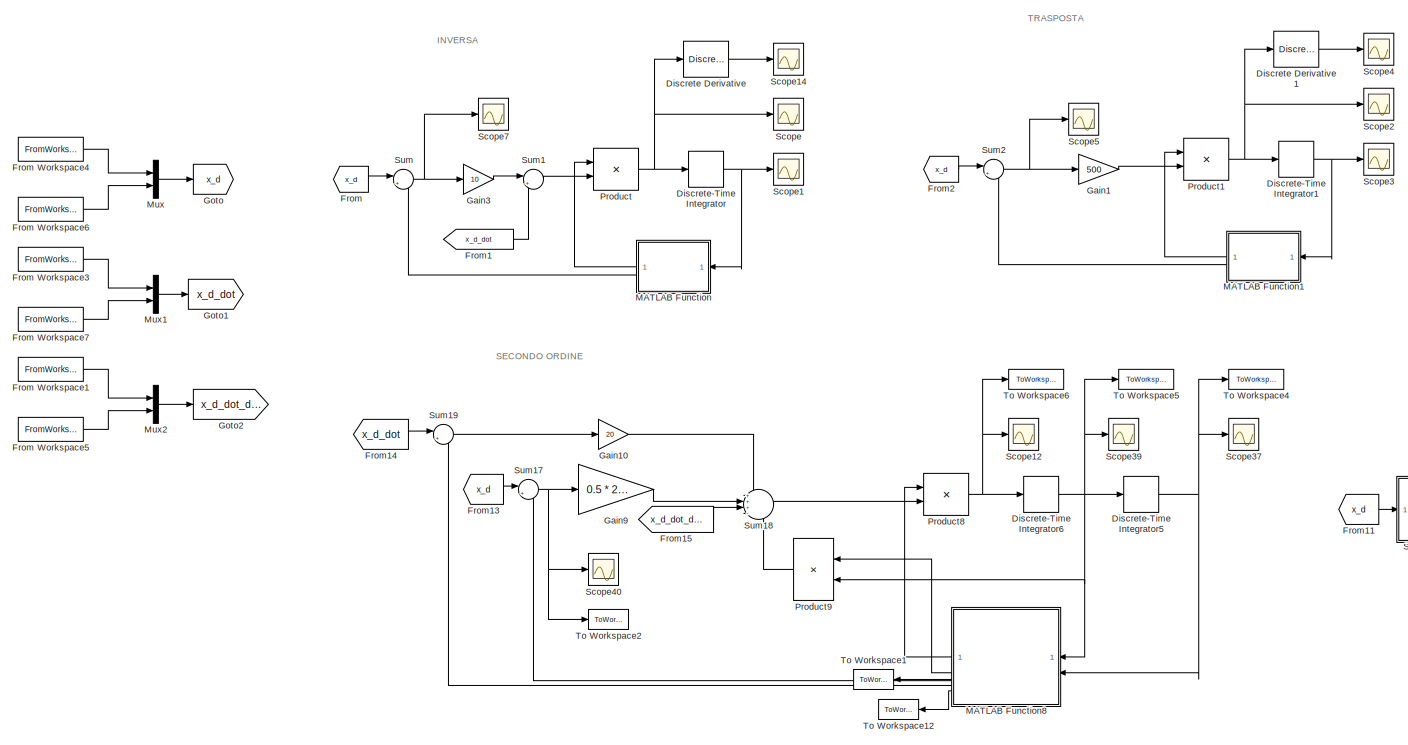
[diagram: root canvas - part 1/2, left side, full height]
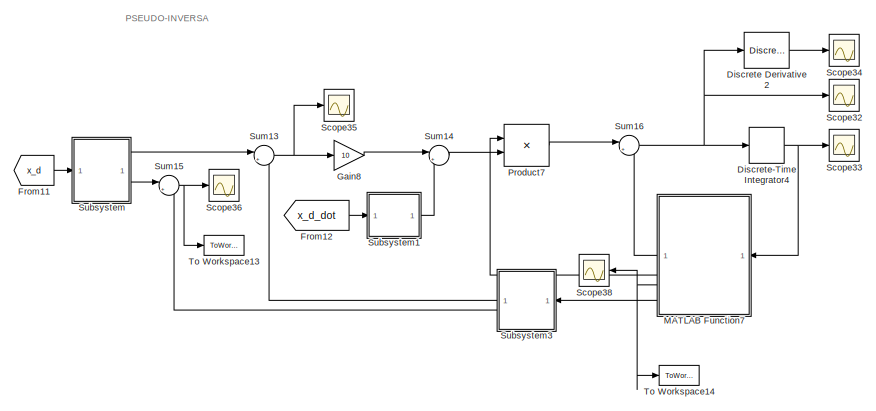
[diagram: root canvas - part 2/2, bottom right region]
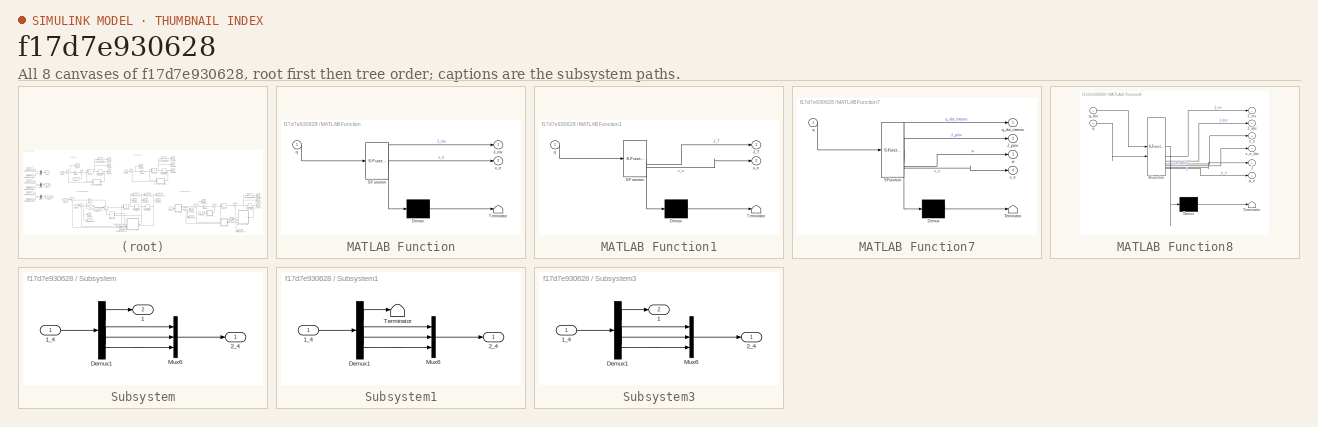
[diagram: thumbnail index - all 8 canvases of the model, root first then tree order]
MODEL slx_f17d7e930628
KIND model
CONFIG AbsTol = auto
CONFIG EnableMultiTasking = off
CONFIG FixedStep = auto
CONFIG MaxStep = auto
CONFIG MinStep = auto
CONFIG RelTol = 1e-3
CONFIG SampleTimeConstraint = Unconstrained
CONFIG SolverName = VariableStepAuto
CONFIG StartTime = 0.0
CONFIG StopTime = 40
BLOCK [Reference] Discrete Derivative  REF=simulink/Discrete/Discrete Derivative
  SourceBlock = simulink/Discrete/Discrete Derivative
  SourceType = Discrete Derivative
BLOCK [Reference] Discrete Derivative1  REF=simulink/Discrete/Discrete Derivative
  SourceBlock = simulink/Discrete/Discrete Derivative
  SourceType = Discrete Derivative
BLOCK [Reference] Discrete Derivative2  REF=simulink/Discrete/Discrete Derivative
  SourceBlock = simulink/Discrete/Discrete Derivative
  SourceType = Discrete Derivative
BLOCK [DiscreteIntegrator] Discrete-Time Integrator
  ICPrevOutput = DiscIntNeverNeededParam
  ICPrevScaledInput = DiscIntNeverNeededParam
  InitialCondition = [theta1_0 theta2_0 -0.25 0]'
  InitialConditionSetting = Auto
  SampleTime = -1
BLOCK [DiscreteIntegrator] Discrete-Time Integrator1
  ICPrevOutput = DiscIntNeverNeededParam
  ICPrevScaledInput = DiscIntNeverNeededParam
  InitialCondition = [theta1_0 theta2_0 -0.25 0]'
  InitialConditionSetting = Auto
  SampleTime = -1
BLOCK [DiscreteIntegrator] Discrete-Time Integrator4
  ICPrevOutput = DiscIntNeverNeededParam
  ICPrevScaledInput = DiscIntNeverNeededParam
  InitialCondition = [theta1_0 theta2_0 -0.25 0]'
  InitialConditionSetting = Auto
  SampleTime = -1
BLOCK [DiscreteIntegrator] Discrete-Time Integrator5
  ICPrevOutput = DiscIntNeverNeededParam
  ICPrevScaledInput = DiscIntNeverNeededParam
  InitialCondition = [theta1_0 theta2_0 -0.25 0]'
  InitialConditionSetting = Auto
  SampleTime = -1
BLOCK [DiscreteIntegrator] Discrete-Time Integrator6
  ICPrevOutput = DiscIntNeverNeededParam
  ICPrevScaledInput = DiscIntNeverNeededParam
  InitialCondition = [0 0 0 0]'
  InitialConditionSetting = Auto
  SampleTime = -1
BLOCK [From] From
  GotoTag = x_d
BLOCK [FromWorkspace] From Workspace1
  SampleTime = T
  VariableName = p_d_dot_dot
BLOCK [FromWorkspace] From Workspace3
  SampleTime = T
  VariableName = p_d_dot
BLOCK [FromWorkspace] From Workspace4
  SampleTime = T
  VariableName = p_d
BLOCK [FromWorkspace] From Workspace5
  SampleTime = T
  VariableName = phi_d_dot_dot
BLOCK [FromWorkspace] From Workspace6
  SampleTime = T
  VariableName = phi_d
BLOCK [FromWorkspace] From Workspace7
  SampleTime = T
  VariableName = phi_d_dot
BLOCK [From] From1
  GotoTag = x_d_dot
BLOCK [From] From11
  GotoTag = x_d
BLOCK [From] From12
  GotoTag = x_d_dot
BLOCK [From] From13
  GotoTag = x_d
BLOCK [From] From14
  GotoTag = x_d_dot
BLOCK [From] From15
  GotoTag = x_d_dot_dot
BLOCK [From] From2
  GotoTag = x_d
BLOCK [Gain] Gain1
  Gain = 500
BLOCK [Gain] Gain10
  Gain = 20
BLOCK [Gain] Gain3
  Gain = 10
BLOCK [Gain] Gain8
  Gain = 10
BLOCK [Gain] Gain9
  Gain = 0.5 * 20^2
BLOCK [Goto] Goto
  GotoTag = x_d
BLOCK [Goto] Goto1
  GotoTag = x_d_dot
BLOCK [Goto] Goto2
  GotoTag = x_d_dot_dot
BLOCK [SubSystem] MATLAB Function
  ErrorFcn = Stateflow.Translate.translate
  LibrarySourceBlock = simulink/User-Defined\nFunctions/MATLAB Function
  NameLocation = top
  PermitHierarchicalResolution = ExplicitOnly
  SFBlockType = MATLAB Function
  TreatAsAtomicUnit = on
BLOCK [Demux] MATLAB Function/ Demux 
  Outputs = 1
BLOCK [S-Function] MATLAB Function/ SFunction 
  EnableBusSupport = on
  FunctionName = sf_sfun
  PortCounts = [1 3]
  SFcnIsStateOwnerBlock = off
  SFunctionDeploymentMode = off
  Tag = Stateflow S-Function 2
BLOCK [Terminator] MATLAB Function/ Terminator 
BLOCK [Outport] MATLAB Function/J_inv
BLOCK [Inport] MATLAB Function/q
BLOCK [Outport] MATLAB Function/x_e
  Port = 2
BLOCK [SubSystem] MATLAB Function1
  ErrorFcn = Stateflow.Translate.translate
  LibrarySourceBlock = simulink/User-Defined\nFunctions/MATLAB Function
  NameLocation = top
  PermitHierarchicalResolution = ExplicitOnly
  SFBlockType = MATLAB Function
  TreatAsAtomicUnit = on
BLOCK [Demux] MATLAB Function1/ Demux 
  Outputs = 1
BLOCK [S-Function] MATLAB Function1/ SFunction 
  EnableBusSupport = on
  FunctionName = sf_sfun
  PortCounts = [1 3]
  SFcnIsStateOwnerBlock = off
  SFunctionDeploymentMode = off
  Tag = Stateflow S-Function 1
BLOCK [Terminator] MATLAB Function1/ Terminator 
BLOCK [Outport] MATLAB Function1/J_T
BLOCK [Inport] MATLAB Function1/q
BLOCK [Outport] MATLAB Function1/x_e
  Port = 2
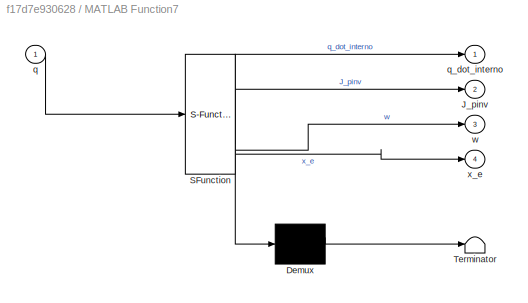
BLOCK [SubSystem] MATLAB Function7
  ErrorFcn = Stateflow.Translate.translate
  LibrarySourceBlock = simulink/User-Defined\nFunctions/MATLAB Function
  NameLocation = top
  PermitHierarchicalResolution = ExplicitOnly
  SFBlockType = MATLAB Function
  TreatAsAtomicUnit = on
BLOCK [Demux] MATLAB Function7/ Demux 
  Outputs = 1
BLOCK [S-Function] MATLAB Function7/ SFunction 
  EnableBusSupport = on
  FunctionName = sf_sfun
  PortCounts = [1 5]
  SFcnIsStateOwnerBlock = off
  SFunctionDeploymentMode = off
  Tag = Stateflow S-Function 8
BLOCK [Terminator] MATLAB Function7/ Terminator 
BLOCK [Outport] MATLAB Function7/J_pinv
  Port = 2
BLOCK [Inport] MATLAB Function7/q
BLOCK [Outport] MATLAB Function7/q_dot_interno
BLOCK [Outport] MATLAB Function7/w
  Port = 3
BLOCK [Outport] MATLAB Function7/x_e
  Port = 4
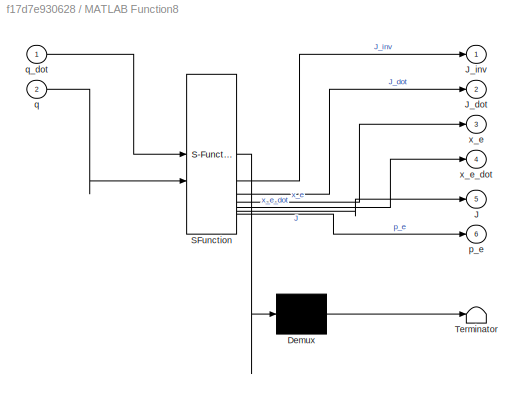
BLOCK [SubSystem] MATLAB Function8
  ErrorFcn = Stateflow.Translate.translate
  LibrarySourceBlock = simulink/User-Defined\nFunctions/MATLAB Function
  NameLocation = top
  PermitHierarchicalResolution = ExplicitOnly
  SFBlockType = MATLAB Function
  TreatAsAtomicUnit = on
BLOCK [Demux] MATLAB Function8/ Demux 
  Outputs = 1
BLOCK [S-Function] MATLAB Function8/ SFunction 
  EnableBusSupport = on
  FunctionName = sf_sfun
  PortCounts = [2 7]
  SFcnIsStateOwnerBlock = off
  SFunctionDeploymentMode = off
  Tag = Stateflow S-Function 9
BLOCK [Terminator] MATLAB Function8/ Terminator 
BLOCK [Outport] MATLAB Function8/J
  Port = 5
BLOCK [Outport] MATLAB Function8/J_dot
  Port = 2
BLOCK [Outport] MATLAB Function8/J_inv
BLOCK [Outport] MATLAB Function8/p_e
  Port = 6
BLOCK [Inport] MATLAB Function8/q
  Port = 2
BLOCK [Inport] MATLAB Function8/q_dot
BLOCK [Outport] MATLAB Function8/x_e
  Port = 3
BLOCK [Outport] MATLAB Function8/x_e_dot
  Port = 4
BLOCK [Mux] Mux
  DisplayOption = bar
  Inputs = 2
BLOCK [Mux] Mux1
  DisplayOption = bar
  Inputs = 2
BLOCK [Mux] Mux2
  DisplayOption = bar
  Inputs = 2
BLOCK [Product] Product
  Multiplication = Matrix(*)
BLOCK [Product] Product1
  Multiplication = Matrix(*)
BLOCK [Product] Product7
  Multiplication = Matrix(*)
BLOCK [Product] Product8
  Multiplication = Matrix(*)
BLOCK [Product] Product9
  Multiplication = Matrix(*)
  NameLocation = top
BLOCK [Scope] Scope
  Floating = off
  NumInputPorts = 1
  ScopeSpecificationString = Simulink.scopes.TimeScopeBlockCfg('CurrentConfiguration', extmgr.ConfigurationSet(extmgr.Configuration('Core','General UI',true),extmgr.Configuration('Core','Source UI',true),extmgr.Configuration('Sources','WiredSimulink',true),extmgr.Configuration('Visuals','Time Domain',true,'SerializedDisplays',{struct('MinYLimReal','-0.81605','MaxYLimReal','1.45384','YLabelReal','','MinYLimMag','0.00000','MaxY...<+1407ch>
BLOCK [Scope] Scope1
  Floating = off
  NumInputPorts = 1
  ScopeSpecificationString = Simulink.scopes.TimeScopeBlockCfg('CurrentConfiguration', extmgr.ConfigurationSet(extmgr.Configuration('Core','General UI',true),extmgr.Configuration('Core','Source UI',true),extmgr.Configuration('Sources','WiredSimulink',true,'DataLoggingVariableName','ScopeData1'),extmgr.Configuration('Visuals','Time Domain',true,'SerializedDisplays',{struct('MinYLimReal','-2.18153','MaxYLimReal','8.166','YLabel...<+1508ch>
BLOCK [Scope] Scope12
  Floating = off
  NumInputPorts = 1
  ScopeSpecificationString = Simulink.scopes.TimeScopeBlockCfg('CurrentConfiguration', extmgr.ConfigurationSet(extmgr.Configuration('Core','General UI',true),extmgr.Configuration('Core','Source UI',true),extmgr.Configuration('Sources','WiredSimulink',true,'DataLoggingVariableName','ScopeData6'),extmgr.Configuration('Visuals','Time Domain',true,'SerializedDisplays',{struct('MinYLimReal','-27386536581232428483349497713191795492...<+3160ch>
BLOCK [Scope] Scope14
  Floating = off
  NumInputPorts = 1
  ScopeSpecificationString = Simulink.scopes.TimeScopeBlockCfg('CurrentConfiguration', extmgr.ConfigurationSet(extmgr.Configuration('Core','General UI',true),extmgr.Configuration('Core','Source UI',true),extmgr.Configuration('Sources','WiredSimulink',true,'DataLoggingVariableName','ScopeData14'),extmgr.Configuration('Visuals','Time Domain',true,'SerializedDisplays',{struct('MinYLimReal','-1.34073','MaxYLimReal','1.80096','YLa...<+1497ch>
BLOCK [Scope] Scope2
  Floating = off
  NumInputPorts = 1
  ScopeSpecificationString = Simulink.scopes.TimeScopeBlockCfg('CurrentConfiguration', extmgr.ConfigurationSet(extmgr.Configuration('Core','General UI',true),extmgr.Configuration('Core','Source UI',true),extmgr.Configuration('Sources','WiredSimulink',true,'DataLoggingVariableName','ScopeData1'),extmgr.Configuration('Visuals','Time Domain',true,'SerializedDisplays',{struct('MinYLimReal','-0.81605','MaxYLimReal','1.45384','YLab...<+1446ch>
BLOCK [Scope] Scope3
  Floating = off
  NumInputPorts = 1
  ScopeSpecificationString = Simulink.scopes.TimeScopeBlockCfg('CurrentConfiguration', extmgr.ConfigurationSet(extmgr.Configuration('Core','General UI',true),extmgr.Configuration('Core','Source UI',true),extmgr.Configuration('Sources','WiredSimulink',true,'DataLoggingVariableName','ScopeData2'),extmgr.Configuration('Visuals','Time Domain',true,'SerializedDisplays',{struct('MinYLimReal','-2.18154','MaxYLimReal','8.16602','YLab...<+1520ch>
BLOCK [Scope] Scope32
  Floating = off
  NumInputPorts = 1
  ScopeSpecificationString = Simulink.scopes.TimeScopeBlockCfg('CurrentConfiguration', extmgr.ConfigurationSet(extmgr.Configuration('Core','General UI',true),extmgr.Configuration('Core','Source UI',true),extmgr.Configuration('Sources','WiredSimulink',true,'DataLoggingVariableName','ScopeData1'),extmgr.Configuration('Visuals','Time Domain',true,'SerializedDisplays',{struct('MinYLimReal','-0.76314','MaxYLimReal','0.97762','YLab...<+1438ch>
BLOCK [Scope] Scope33
  Floating = off
  NumInputPorts = 1
  ScopeSpecificationString = Simulink.scopes.TimeScopeBlockCfg('CurrentConfiguration', extmgr.ConfigurationSet(extmgr.Configuration('Core','General UI',true),extmgr.Configuration('Core','Source UI',true),extmgr.Configuration('Sources','WiredSimulink',true,'DataLoggingVariableName','ScopeData2'),extmgr.Configuration('Visuals','Time Domain',true,'SerializedDisplays',{struct('MinYLimReal','-0.90053','MaxYLimReal','3.10473','YLab...<+1501ch>
BLOCK [Scope] Scope34
  Floating = off
  NumInputPorts = 1
  ScopeSpecificationString = Simulink.scopes.TimeScopeBlockCfg('CurrentConfiguration', extmgr.ConfigurationSet(extmgr.Configuration('Core','General UI',true),extmgr.Configuration('Core','Source UI',true),extmgr.Configuration('Sources','WiredSimulink',true,'DataLoggingVariableName','ScopeData3'),extmgr.Configuration('Visuals','Time Domain',true,'SerializedDisplays',{struct('MinYLimReal','-1.03452','MaxYLimReal','1.27089','YLab...<+1500ch>
BLOCK [Scope] Scope35
  Floating = off
  NumInputPorts = 1
  ScopeSpecificationString = Simulink.scopes.TimeScopeBlockCfg('CurrentConfiguration', extmgr.ConfigurationSet(extmgr.Configuration('Core','General UI',true),extmgr.Configuration('Core','Source UI',true),extmgr.Configuration('Sources','WiredSimulink',true,'DataLoggingVariableName','ScopeData4'),extmgr.Configuration('Visuals','Time Domain',true,'SerializedDisplays',{struct('MinYLimReal','-0.000003','MaxYLimReal','0.000017','YL...<+1419ch>
BLOCK [Scope] Scope36
  Floating = off
  NumInputPorts = 1
  ScopeSpecificationString = Simulink.scopes.TimeScopeBlockCfg('CurrentConfiguration', extmgr.ConfigurationSet(extmgr.Configuration('Core','General UI',true),extmgr.Configuration('Core','Source UI',true),extmgr.Configuration('Sources','WiredSimulink',true,'DataLoggingVariableName','ScopeData5'),extmgr.Configuration('Visuals','Time Domain',true,'SerializedDisplays',{struct('MinYLimReal','-0.35969','MaxYLimReal','1.37789','YLab...<+1389ch>
BLOCK [Scope] Scope37
  Floating = off
  NumInputPorts = 1
  ScopeSpecificationString = Simulink.scopes.TimeScopeBlockCfg('CurrentConfiguration', extmgr.ConfigurationSet(extmgr.Configuration('Core','General UI',true),extmgr.Configuration('Core','Source UI',true),extmgr.Configuration('Sources','WiredSimulink',true,'DataLoggingVariableName','ScopeData8'),extmgr.Configuration('Visuals','Time Domain',true,'SerializedDisplays',{struct('MinYLimReal','972140888908744258176481301387980835695...<+3224ch>
BLOCK [Scope] Scope38
  Floating = off
  NameLocation = top
  NumInputPorts = 1
  ScopeSpecificationString = Simulink.scopes.TimeScopeBlockCfg('CurrentConfiguration', extmgr.ConfigurationSet(extmgr.Configuration('Core','General UI',true),extmgr.Configuration('Core','Source UI',true),extmgr.Configuration('Sources','WiredSimulink',true,'DataLoggingVariableName','ScopeData7'),extmgr.Configuration('Visuals','Time Domain',true,'SerializedDisplays',{struct('MinYLimReal','0.2689','MaxYLimReal','0.88707','YLabel...<+1396ch>
BLOCK [Scope] Scope39
  Floating = off
  NumInputPorts = 1
  ScopeSpecificationString = Simulink.scopes.TimeScopeBlockCfg('CurrentConfiguration', extmgr.ConfigurationSet(extmgr.Configuration('Core','General UI',true),extmgr.Configuration('Core','Source UI',true),extmgr.Configuration('Sources','WiredSimulink',true,'DataLoggingVariableName','ScopeData9'),extmgr.Configuration('Visuals','Time Domain',true,'SerializedDisplays',{struct('MinYLimReal','-0.81602','MaxYLimReal','1.45372','YLab...<+1462ch>
BLOCK [Scope] Scope4
  Floating = off
  NumInputPorts = 1
  ScopeSpecificationString = Simulink.scopes.TimeScopeBlockCfg('CurrentConfiguration', extmgr.ConfigurationSet(extmgr.Configuration('Core','General UI',true),extmgr.Configuration('Core','Source UI',true),extmgr.Configuration('Sources','WiredSimulink',true,'DataLoggingVariableName','ScopeData3'),extmgr.Configuration('Visuals','Time Domain',true,'SerializedDisplays',{struct('MinYLimReal','-1.34086','MaxYLimReal','1.80113','YLab...<+1500ch>
BLOCK [Scope] Scope40
  Floating = off
  NumInputPorts = 1
  ScopeSpecificationString = Simulink.scopes.TimeScopeBlockCfg('CurrentConfiguration', extmgr.ConfigurationSet(extmgr.Configuration('Core','General UI',true),extmgr.Configuration('Core','Source UI',true),extmgr.Configuration('Sources','WiredSimulink',true,'DataLoggingVariableName','ScopeData10'),extmgr.Configuration('Visuals','Time Domain',true,'SerializedDisplays',{struct('MinYLimReal','-0.000024','MaxYLimReal','0.000024','Y...<+1447ch>
BLOCK [Scope] Scope5
  Floating = off
  NumInputPorts = 1
  ScopeSpecificationString = Simulink.scopes.TimeScopeBlockCfg('CurrentConfiguration', extmgr.ConfigurationSet(extmgr.Configuration('Core','General UI',true),extmgr.Configuration('Core','Source UI',true),extmgr.Configuration('Sources','WiredSimulink',true,'DataLoggingVariableName','ScopeData4'),extmgr.Configuration('Visuals','Time Domain',true,'SerializedDisplays',{struct('MinYLimReal','-0.00946','MaxYLimReal','0.01211','YLab...<+1436ch>
BLOCK [Scope] Scope7
  Floating = off
  NumInputPorts = 1
  ScopeSpecificationString = Simulink.scopes.TimeScopeBlockCfg('CurrentConfiguration', extmgr.ConfigurationSet(extmgr.Configuration('Core','General UI',true),extmgr.Configuration('Core','Source UI',true),extmgr.Configuration('Sources','WiredSimulink',true,'DataLoggingVariableName','ScopeData7'),extmgr.Configuration('Visuals','Time Domain',true,'SerializedDisplays',{struct('MinYLimReal','-0.000017','MaxYLimReal','0.000018','YL...<+1440ch>
BLOCK [SubSystem] Subsystem
BLOCK [Outport] Subsystem/1
  Port = 2
BLOCK [Inport] Subsystem/1_4
BLOCK [Outport] Subsystem/2_4
BLOCK [Demux] Subsystem/Demux1
BLOCK [Mux] Subsystem/Mux6
  DisplayOption = bar
  Inputs = 3
BLOCK [SubSystem] Subsystem1
BLOCK [Inport] Subsystem1/1_4
BLOCK [Outport] Subsystem1/2_4
BLOCK [Demux] Subsystem1/Demux1
BLOCK [Mux] Subsystem1/Mux6
  DisplayOption = bar
  Inputs = 3
BLOCK [Terminator] Subsystem1/Terminator
BLOCK [SubSystem] Subsystem3
  NameLocation = top
BLOCK [Outport] Subsystem3/1
  Port = 2
BLOCK [Inport] Subsystem3/1_4
BLOCK [Outport] Subsystem3/2_4
BLOCK [Demux] Subsystem3/Demux1
BLOCK [Mux] Subsystem3/Mux6
  DisplayOption = bar
  Inputs = 3
BLOCK [Sum] Sum
  Inputs = |+-
BLOCK [Sum] Sum1
  Inputs = |++
BLOCK [Sum] Sum13
  Inputs = |+-
BLOCK [Sum] Sum14
  Inputs = |++
BLOCK [Sum] Sum15
  Inputs = |+-
BLOCK [Sum] Sum16
  Inputs = |++
BLOCK [Sum] Sum17
  Inputs = |+-
BLOCK [Sum] Sum18
  Inputs = +++-
BLOCK [Sum] Sum19
  Inputs = |+-
BLOCK [Sum] Sum2
  Inputs = |+-
BLOCK [ToWorkspace] To Workspace1
  FixptAsFi = on
  MaxDataPoints = inf
  NameLocation = top
  SampleTime = -1
  SaveFormat = Structure With Time
  VariableName = J
BLOCK [ToWorkspace] To Workspace12
  FixptAsFi = on
  MaxDataPoints = inf
  NameLocation = top
  SampleTime = -1
  SaveFormat = Structure With Time
  VariableName = p_e
BLOCK [ToWorkspace] To Workspace13
  FixptAsFi = on
  MaxDataPoints = inf
  SampleTime = -1
  SaveFormat = Structure With Time
  VariableName = e_x
BLOCK [ToWorkspace] To Workspace14
  FixptAsFi = on
  MaxDataPoints = inf
  SampleTime = -1
  SaveFormat = Structure With Time
  VariableName = w
BLOCK [ToWorkspace] To Workspace2
  FixptAsFi = on
  MaxDataPoints = inf
  SampleTime = -1
  SaveFormat = Structure With Time
  VariableName = e
BLOCK [ToWorkspace] To Workspace4
  FixptAsFi = on
  MaxDataPoints = inf
  SampleTime = -1
  SaveFormat = Structure With Time
  VariableName = q_d
BLOCK [ToWorkspace] To Workspace5
  FixptAsFi = on
  MaxDataPoints = inf
  SampleTime = -1
  SaveFormat = Structure With Time
  VariableName = q_d_dot
BLOCK [ToWorkspace] To Workspace6
  FixptAsFi = on
  MaxDataPoints = inf
  SampleTime = -1
  SaveFormat = Structure With Time
  VariableName = q_d_dot_dot
ANNOTATION (root): SECONDO ORDINE
ANNOTATION (root): INVERSA
ANNOTATION (root): PSEUDO-INVERSA
ANNOTATION (root): TRASPOSTA
LINE Discrete Derivative1:1 -> Scope4:1
LINE Discrete Derivative2:1 -> Scope34:1
LINE Discrete Derivative:1 -> Scope14:1
NET Discrete-Time Integrator1:1 -> MATLAB Function1:1, Scope3:1
NET Discrete-Time Integrator4:1 -> MATLAB Function7:1, Scope33:1
NET Discrete-Time Integrator5:1 -> MATLAB Function8:2, Scope37:1, To Workspace4:1
NET Discrete-Time Integrator6:1 -> Discrete-Time Integrator5:1, MATLAB Function8:1, Product9:2, Scope39:1, To Workspace5:1
NET Discrete-Time Integrator:1 -> MATLAB Function:1, Scope1:1
LINE From Workspace1:1 -> Mux2:1
LINE From Workspace3:1 -> Mux1:1
LINE From Workspace4:1 -> Mux:1
LINE From Workspace5:1 -> Mux2:2
LINE From Workspace6:1 -> Mux:2
LINE From Workspace7:1 -> Mux1:2
LINE From11:1 -> Subsystem:1
LINE From12:1 -> Subsystem1:1
LINE From13:1 -> Sum17:1
LINE From14:1 -> Sum19:1
LINE From15:1 -> Sum18:3
LINE From1:1 -> Sum1:2
LINE From2:1 -> Sum2:1
LINE From:1 -> Sum:1
LINE Gain10:1 -> Sum18:1
LINE Gain1:1 -> Product1:2
LINE Gain3:1 -> Sum1:1
LINE Gain8:1 -> Sum14:1
LINE Gain9:1 -> Sum18:2
LINE MATLAB Function1:1 -> Product1:1
LINE MATLAB Function1:2 -> Sum2:2
LINE MATLAB Function7:1 -> Sum16:2
LINE MATLAB Function7:2 -> Product7:1
NET MATLAB Function7:3 -> Scope38:1, To Workspace14:1
LINE MATLAB Function7:4 -> Subsystem3:1
LINE MATLAB Function8:1 -> Product8:1
LINE MATLAB Function8:2 -> Product9:1
LINE MATLAB Function8:3 -> Sum17:2
LINE MATLAB Function8:4 -> Sum19:2
LINE MATLAB Function8:5 -> To Workspace1:1
LINE MATLAB Function8:6 -> To Workspace12:1
LINE MATLAB Function:1 -> Product:1
LINE MATLAB Function:2 -> Sum:2
LINE Mux1:1 -> Goto1:1
LINE Mux2:1 -> Goto2:1
LINE Mux:1 -> Goto:1
NET Product1:1 -> Discrete Derivative1:1, Discrete-Time Integrator1:1, Scope2:1
LINE Product7:1 -> Sum16:1
NET Product8:1 -> Discrete-Time Integrator6:1, Scope12:1, To Workspace6:1
LINE Product9:1 -> Sum18:4
NET Product:1 -> Discrete Derivative:1, Discrete-Time Integrator:1, Scope:1
LINE Subsystem/1_4:1 -> Subsystem/Demux1:1
LINE Subsystem/Demux1:1 -> Subsystem/1:1
LINE Subsystem/Demux1:2 -> Subsystem/Mux6:1
LINE Subsystem/Demux1:3 -> Subsystem/Mux6:2
LINE Subsystem/Demux1:4 -> Subsystem/Mux6:3
LINE Subsystem/Mux6:1 -> Subsystem/2_4:1
LINE Subsystem1/1_4:1 -> Subsystem1/Demux1:1
LINE Subsystem1/Demux1:1 -> Subsystem1/Terminator:1
LINE Subsystem1/Demux1:2 -> Subsystem1/Mux6:1
LINE Subsystem1/Demux1:3 -> Subsystem1/Mux6:2
LINE Subsystem1/Demux1:4 -> Subsystem1/Mux6:3
LINE Subsystem1/Mux6:1 -> Subsystem1/2_4:1
LINE Subsystem1:1 -> Sum14:2
LINE Subsystem3/1_4:1 -> Subsystem3/Demux1:1
LINE Subsystem3/Demux1:1 -> Subsystem3/1:1
LINE Subsystem3/Demux1:2 -> Subsystem3/Mux6:1
LINE Subsystem3/Demux1:3 -> Subsystem3/Mux6:2
LINE Subsystem3/Demux1:4 -> Subsystem3/Mux6:3
LINE Subsystem3/Mux6:1 -> Subsystem3/2_4:1
LINE Subsystem3:1 -> Sum13:2
LINE Subsystem3:2 -> Sum15:2
LINE Subsystem:1 -> Sum13:1
LINE Subsystem:2 -> Sum15:1
NET Sum13:1 -> Gain8:1, Scope35:1
LINE Sum14:1 -> Product7:2
NET Sum15:1 -> Scope36:1, To Workspace13:1
NET Sum16:1 -> Discrete Derivative2:1, Discrete-Time Integrator4:1, Scope32:1
NET Sum17:1 -> Gain9:1, Scope40:1, To Workspace2:1
LINE Sum18:1 -> Product8:2
LINE Sum19:1 -> Gain10:1
LINE Sum1:1 -> Product:2
NET Sum2:1 -> Gain1:1, Scope5:1
NET Sum:1 -> Gain3:1, Scope7:1
note: NET lines group one-source signal fan-out (src -> all destinations, sorted); 1:1 wires keep LINE
CHART MATLAB Function1 states=1 transitions=1
  STATE_LABEL 'eML_blk_kernel()'
  STATE_LABEL 'SCRIPT:\nfunction [J_T,x_e] = kin(q)\n\n    q1 = q(1); q2 = q(2); q3 = q(3); q4 = q(4);\n\n    J = [- sin(q1)/2 - (cos(q1)*sin(q2))/2 - (cos(q2)*sin(q1))/2, - (cos(q1)*sin(q2))/2 - (cos(q2)*sin(q1))/2, 0, 0;\n           cos(q1)/2 + (cos(q1)*cos(q2))/2 - (sin(q1)*sin(q2))/2,   (cos(q1)*cos(q2))/2 - (sin(q1)*sin(q2))/2, 0, 0;\n                                                               0,               ...<+427ch>'
CHART MATLAB Function states=1 transitions=1
  STATE_LABEL 'eML_blk_kernel()'
  STATE_LABEL 'SCRIPT:\nfunction [J_inv,x_e] = kin(q)\n    \n    q1 = q(1); q2 = q(2); q3 = q(3); q4 = q(4);\n\n    J = [- sin(q1)/2 - (cos(q1)*sin(q2))/2 - (cos(q2)*sin(q1))/2, - (cos(q1)*sin(q2))/2 - (cos(q2)*sin(q1))/2, 0, 0;\n           cos(q1)/2 + (cos(q1)*cos(q2))/2 - (sin(q1)*sin(q2))/2,   (cos(q1)*cos(q2))/2 - (sin(q1)*sin(q2))/2, 0, 0;\n                                                               0,         ...<+432ch>'
CHART MATLAB Function7 states=1 transitions=1
  STATE_LABEL 'eML_blk_kernel()'
  STATE_LABEL 'SCRIPT:\nfunction [q_dot_interno,J_pinv,w,x_e] = kin(q)\n\n    q1 = q(1); q2 = q(2); q3 = q(3); q4 = q(4);\n\n    J = [- sin(q1)/2 - (cos(q1)*sin(q2))/2 - (cos(q2)*sin(q1))/2, - (cos(q1)*sin(q2))/2 - (cos(q2)*sin(q1))/2, 0, 0;\n           cos(q1)/2 + (cos(q1)*cos(q2))/2 - (sin(q1)*sin(q2))/2,   (cos(q1)*cos(q2))/2 - (sin(q1)*sin(q2))/2, 0, 0;\n                                                             ...<+566ch>'
CHART MATLAB Function8 states=1 transitions=1
  STATE_LABEL 'eML_blk_kernel()'
  STATE_LABEL 'SCRIPT:\nfunction [J_inv,J_dot,x_e,x_e_dot,J,p_e] = kin(q_dot,q)\n\n    q1 = q(1); q2 = q(2); q3 = q(3); q4 = q(4);\n    q_dot1 = q_dot(1); q_dot2 = q_dot(2); q_dot3 = q_dot(3); q_dot4 = q_dot(4);\n\n    J = [- sin(q1)/2 - (cos(q1)*sin(q2))/2 - (cos(q2)*sin(q1))/2, - (cos(q1)*sin(q2))/2 - (cos(q2)*sin(q1))/2, 0, 0;\n           cos(q1)/2 + (cos(q1)*cos(q2))/2 - (sin(q1)*sin(q2))/2,   (cos(q1)*cos(q2))/2 -...<+1686ch>'
CHART  states=0 transitions=0
CHART  states=0 transitions=0
CHART  states=0 transitions=0
CHART  states=0 transitions=0
